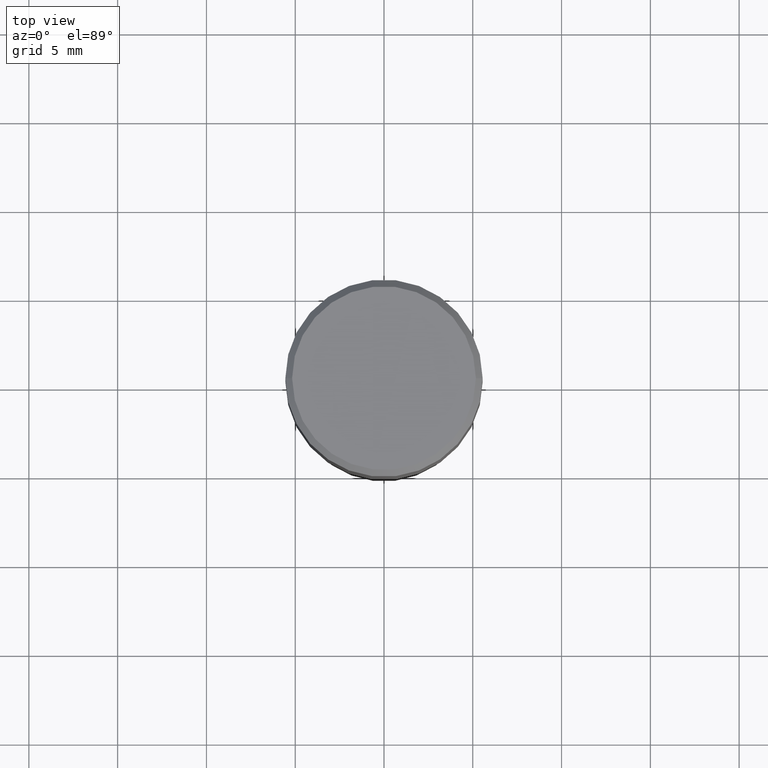
[diagram: clean part render]
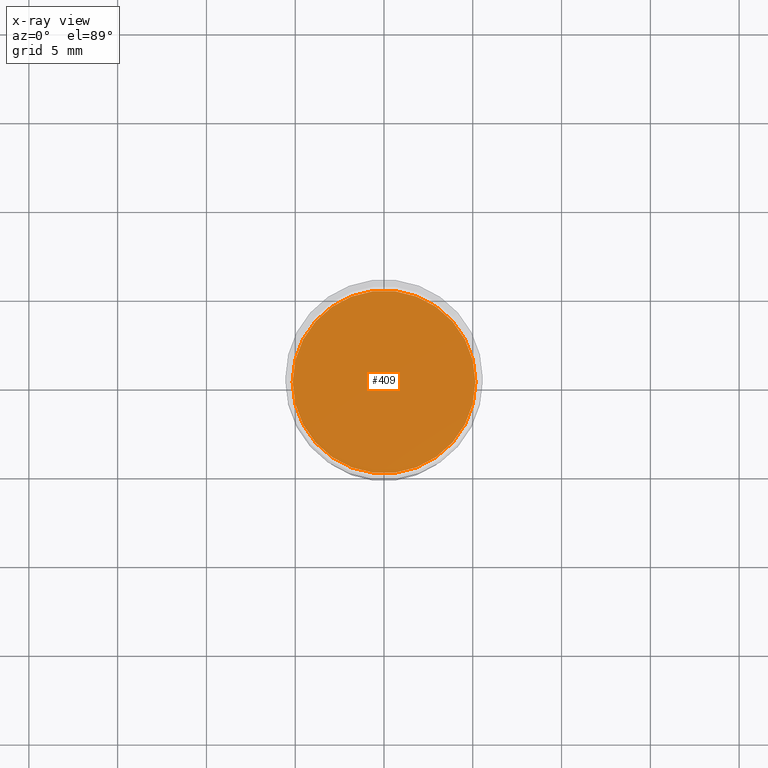
[diagram: x-ray — body ghosted, one internal face saturated and labeled with its STEP entity id]
A machine part, top view, then the same camera in x-ray: the body is ghosted and one INTERNAL B-rep face — a face not visible from any outside direction — is saturated and labeled: STEP entity #409.
In plain terms, the highlighted planar face has unit normal (-0, 0, 1).
Its self-contained STEP definition (entity closure, byte-faithful):
#9 = AXIS2_PLACEMENT_3D ( 'NONE', #32, #358, #170 ) ;
#32 = CARTESIAN_POINT ( 'NONE',  ( 1.222734403092568719E-29, -1.745740669421573186E-15, -0.5000000000000001110 ) ) ;
#41 = DIRECTION ( 'NONE',  ( 1.000000000000000000, -6.982962677686265922E-15, 4.876176775795935793E-29 ) ) ;
#43 = VERTEX_POINT ( 'NONE', #175 ) ;
#60 = CIRCLE ( 'NONE', #9, 0.2026000000000000023 ) ;
#72 = FACE_OUTER_BOUND ( 'NONE', #244, .T. ) ;
#96 = EDGE_CURVE ( 'NONE', #43, #401, #463, .T. ) ;
#135 = DIRECTION ( 'NONE',  ( -2.445468806185136597E-29, 3.491481338843145583E-15, 1.000000000000000000 ) ) ;
#139 = CARTESIAN_POINT ( 'NONE',  ( 1.222734403092568719E-29, -1.745740669421573186E-15, -0.5000000000000001110 ) ) ;
#143 = ORIENTED_EDGE ( 'NONE', *, *, #199, .F. ) ;
#153 = ORIENTED_EDGE ( 'NONE', *, *, #96, .F. ) ;
#170 = DIRECTION ( 'NONE',  ( 1.000000000000000000, -6.982962677686268288E-15, 0.000000000000000000 ) ) ;
#175 = CARTESIAN_POINT ( 'NONE',  ( -0.2026000000000000023, -3.035318595974993861E-16, -0.5000000000000001110 ) ) ;
#189 = PLANE ( 'NONE',  #253 ) ;
#199 = EDGE_CURVE ( 'NONE', #401, #43, #60, .T. ) ;
#244 = EDGE_LOOP ( 'NONE', ( #143, #153 ) ) ;
#253 = AXIS2_PLACEMENT_3D ( 'NONE', #298, #436, #41 ) ;
#298 = CARTESIAN_POINT ( 'NONE',  ( 1.222734403092568719E-29, -1.745740669421573186E-15, -0.5000000000000001110 ) ) ;
#350 = DIRECTION ( 'NONE',  ( 1.000000000000000000, -6.982962677686268288E-15, 0.000000000000000000 ) ) ;
#358 = DIRECTION ( 'NONE',  ( -2.445468806185136597E-29, 3.491481338843145583E-15, 1.000000000000000000 ) ) ;
#368 = CARTESIAN_POINT ( 'NONE',  ( 0.2026000000000000023, -3.160488907920811151E-15, -0.5000000000000001110 ) ) ;
#376 = AXIS2_PLACEMENT_3D ( 'NONE', #139, #135, #350 ) ;
#401 = VERTEX_POINT ( 'NONE', #368 ) ;
#409 = ADVANCED_FACE ( 'NONE', ( #72 ), #189, .F. ) ;
#436 = DIRECTION ( 'NONE',  ( -2.438088387897960049E-29, 3.491481338843145188E-15, 1.000000000000000000 ) ) ;
#463 = CIRCLE ( 'NONE', #376, 0.2026000000000000023 ) ;